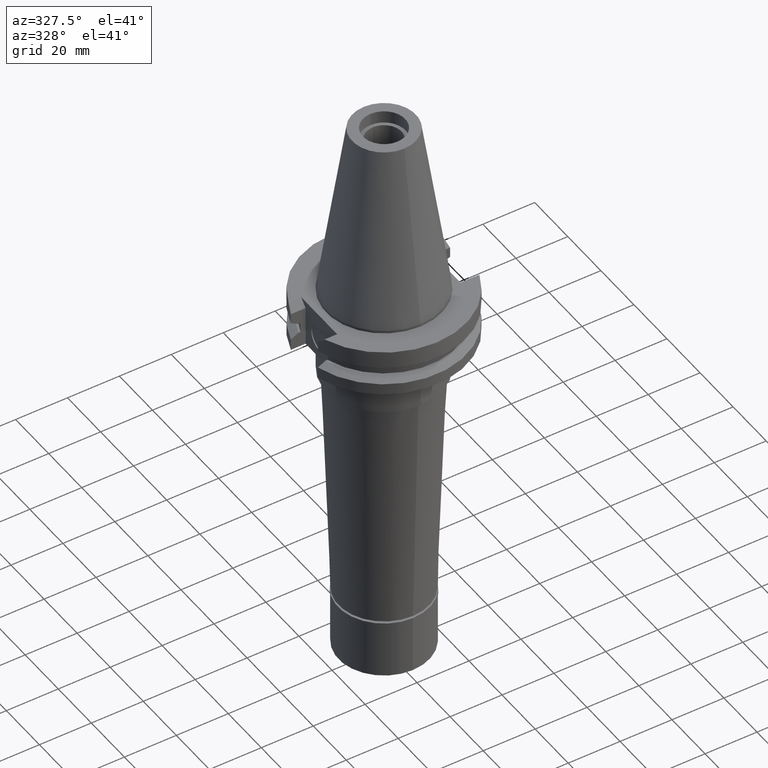
[diagram: clean part render]
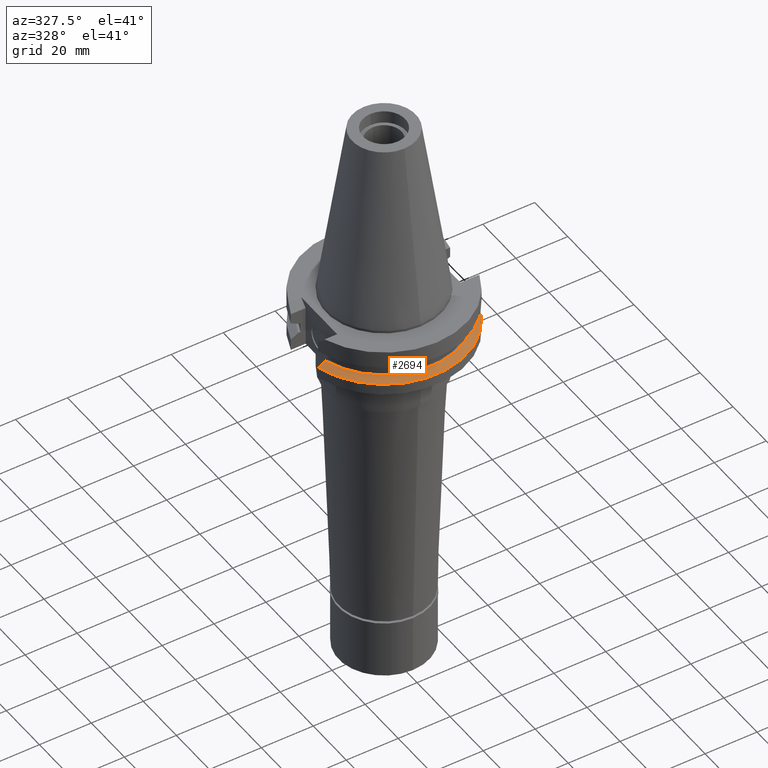
[diagram: same view with one face highlighted and labeled with its STEP entity id]
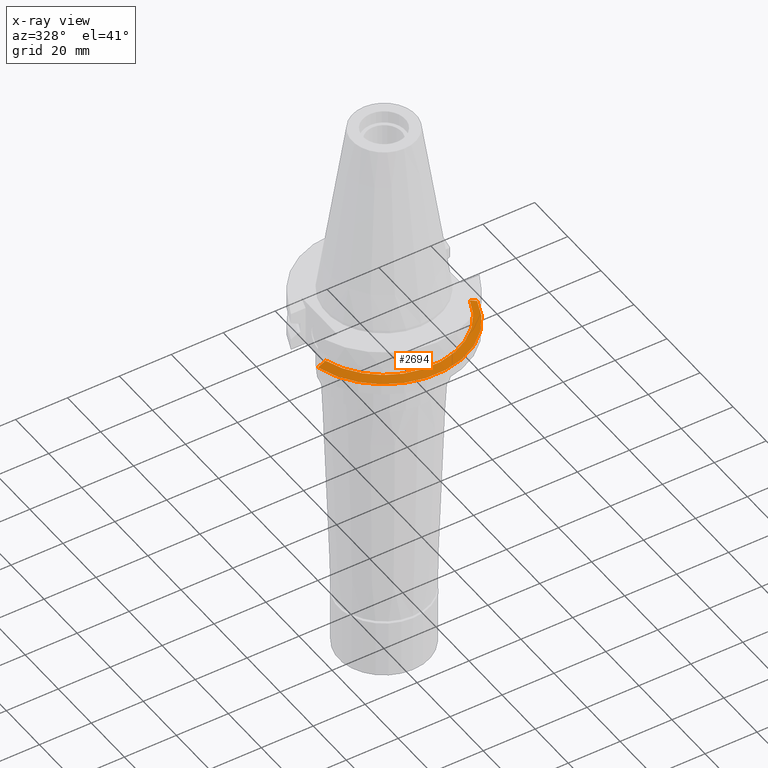
[diagram: x-ray of the same camera — body ghosted, the highlighted face saturated]
A machine part, auxiliary view. The second image highlights one B-rep face of the part: STEP entity #2694.
The next image is the same camera in x-ray: the body ghosted, the highlighted face saturated — about 0% of this face is hidden behind the body in this view.
In plain terms, the highlighted conical surface has half-angle 60 deg.
Its self-contained STEP definition (entity closure, byte-faithful):
#103 = CARTESIAN_POINT ( 'NONE',  ( -28.10705140341000074, -8.189999365883000593, -13.22337244881000018 ) ) ;
#262 = VERTEX_POINT ( 'NONE', #623 ) ;
#277 = EDGE_CURVE ( 'NONE', #750, #1262, #686, .T. ) ;
#433 = DIRECTION ( 'NONE',  ( 0.0000000000000000000, 0.0000000000000000000, -1.000000000000000000 ) ) ;
#604 = B_SPLINE_CURVE_WITH_KNOTS ( 'NONE', 3,
 ( #2875, #1391, #3156, #1353, #103, #2412 ),
 .UNSPECIFIED., .F., .F.,
 ( 4, 1, 1, 4 ),
 ( 0.0000000000000000000, 0.3333333333333000081, 0.6666666666667000474, 1.000000000000000000 ),
 .UNSPECIFIED. ) ;
#623 = CARTESIAN_POINT ( 'NONE',  ( 30.67550146538999911, -8.190000601169000305, -14.65184201425000055 ) ) ;
#662 = DIRECTION ( 'NONE',  ( 0.0000000000000000000, -1.000000000000000000, 0.0000000000000000000 ) ) ;
#671 = CARTESIAN_POINT ( 'NONE',  ( 28.10705132222999936, -8.190000189174000411, -13.22337926646999939 ) ) ;
#686 = CIRCLE ( 'NONE', #1176, 28.97553755052999946 ) ;
#750 = VERTEX_POINT ( 'NONE', #3220 ) ;
#881 = DIRECTION ( 'NONE',  ( 0.0000000000000000000, 0.0000000000000000000, -1.000000000000000000 ) ) ;
#899 = CARTESIAN_POINT ( 'NONE',  ( 0.0000000000000000000, 1.055021971275999843E-14, -13.05000000000000071 ) ) ;
#939 = CARTESIAN_POINT ( 'NONE',  ( 30.67550146538999911, -8.190000601169000305, -14.65184201425000055 ) ) ;
#970 = B_SPLINE_CURVE_WITH_KNOTS ( 'NONE', 3,
 ( #2988, #671, #2241, #2465, #3270, #939 ),
 .UNSPECIFIED., .F., .F.,
 ( 4, 1, 1, 4 ),
 ( 0.0000000000000000000, 0.3333333333333000081, 0.6666666666667000474, 1.000000000000000000 ),
 .UNSPECIFIED. ) ;
#1047 = ORIENTED_EDGE ( 'NONE', *, *, #2533, .F. ) ;
#1122 = DIRECTION ( 'NONE',  ( 0.0000000000000000000, 0.0000000000000000000, -1.000000000000000000 ) ) ;
#1169 = FACE_OUTER_BOUND ( 'NONE', #2824, .T. ) ;
#1170 = EDGE_CURVE ( 'NONE', #750, #262, #970, .T. ) ;
#1176 = AXIS2_PLACEMENT_3D ( 'NONE', #899, #1122, #1696 ) ;
#1193 = AXIS2_PLACEMENT_3D ( 'NONE', #1736, #433, #662 ) ;
#1262 = VERTEX_POINT ( 'NONE', #2270 ) ;
#1307 = ORIENTED_EDGE ( 'NONE', *, *, #1529, .F. ) ;
#1346 = DIRECTION ( 'NONE',  ( 0.9661575315241073270, -0.2579527559055020958, 0.0000000000000000000 ) ) ;
#1353 = CARTESIAN_POINT ( 'NONE',  ( -28.73791142355999995, -8.190000279292998897, -13.57322328676999845 ) ) ;
#1391 = CARTESIAN_POINT ( 'NONE',  ( -30.34821917377999867, -8.189999875291000819, -14.46927365482000027 ) ) ;
#1529 = EDGE_CURVE ( 'NONE', #2581, #1262, #604, .T. ) ;
#1541 = ORIENTED_EDGE ( 'NONE', *, *, #277, .T. ) ;
#1696 = DIRECTION ( 'NONE',  ( 0.0000000000000000000, -1.000000000000000000, 0.0000000000000000000 ) ) ;
#1736 = CARTESIAN_POINT ( 'NONE',  ( 0.0000000000000000000, 1.055021971275999843E-14, -13.85091832103000087 ) ) ;
#1789 = CONICAL_SURFACE ( 'NONE', #1193, 30.36276877526999840, 1.047197551196400456 ) ;
#1974 = ORIENTED_EDGE ( 'NONE', *, *, #1170, .F. ) ;
#2070 = AXIS2_PLACEMENT_3D ( 'NONE', #2165, #881, #1346 ) ;
#2165 = CARTESIAN_POINT ( 'NONE',  ( 0.0000000000000000000, 1.055021971275999843E-14, -14.65183664206000103 ) ) ;
#2241 = CARTESIAN_POINT ( 'NONE',  ( 28.73790650484999887, -8.189999991875000163, -13.57321774197000153 ) ) ;
#2270 = CARTESIAN_POINT ( 'NONE',  ( -27.79399588473999927, -8.189999365883000593, -13.05000000000000071 ) ) ;
#2412 = CARTESIAN_POINT ( 'NONE',  ( -27.79399588473999927, -8.189999365883000593, -13.05000000000000071 ) ) ;
#2458 = CARTESIAN_POINT ( 'NONE',  ( -30.67550165918999738, -8.189999875291000819, -14.65183552763999941 ) ) ;
#2465 = CARTESIAN_POINT ( 'NONE',  ( 29.69840152093999919, -8.189999744677999516, -14.10718489775000073 ) ) ;
#2533 = EDGE_CURVE ( 'NONE', #262, #2581, #2799, .T. ) ;
#2581 = VERTEX_POINT ( 'NONE', #2458 ) ;
#2694 = ADVANCED_FACE ( 'NONE', ( #1169 ), #1789, .T. ) ;
#2799 = CIRCLE ( 'NONE', #2070, 31.74999999999998579 ) ;
#2824 = EDGE_LOOP ( 'NONE', ( #1974, #1541, #1307, #1047 ) ) ;
#2875 = CARTESIAN_POINT ( 'NONE',  ( -30.67550165918999738, -8.189999875291000819, -14.65183552763999941 ) ) ;
#2988 = CARTESIAN_POINT ( 'NONE',  ( 27.79398348484999914, -8.190000189174000411, -13.05000000000000071 ) ) ;
#3156 = CARTESIAN_POINT ( 'NONE',  ( -29.69840292686000183, -8.189999973648999898, -14.10718831921999872 ) ) ;
#3220 = CARTESIAN_POINT ( 'NONE',  ( 27.79398348484999914, -8.190000189174000411, -13.05000000000000071 ) ) ;
#3270 = CARTESIAN_POINT ( 'NONE',  ( 30.34821319413000040, -8.190000601169000305, -14.46927691749000111 ) ) ;